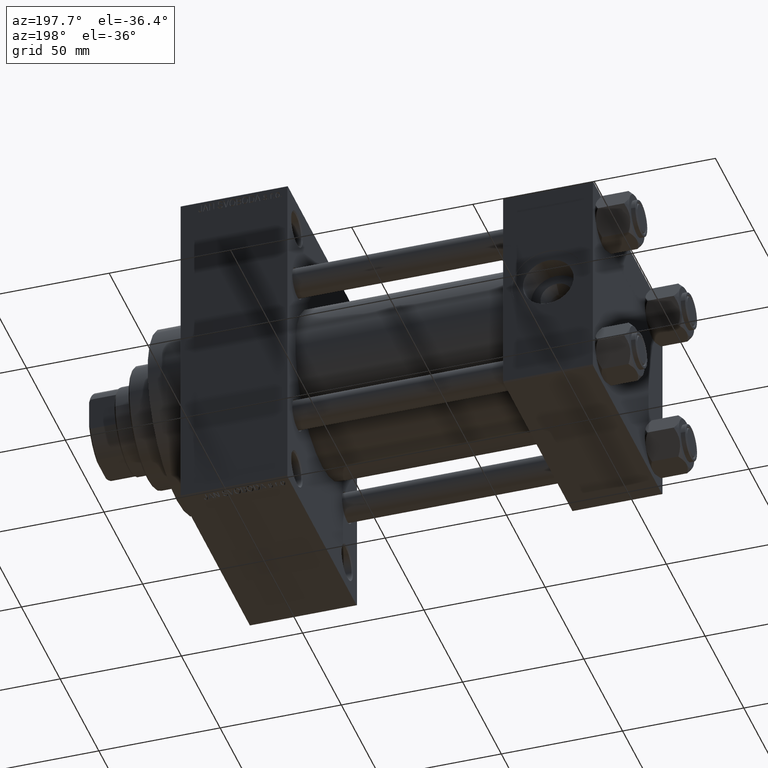
[diagram: clean part render]
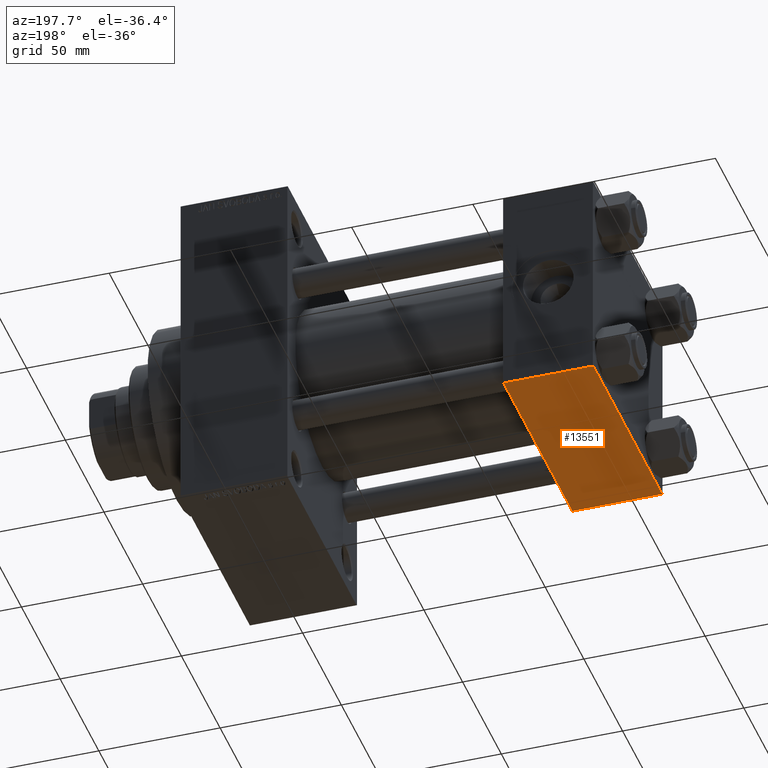
[diagram: same view with one face highlighted and labeled with its STEP entity id]
A machine part, auxiliary view. The second image highlights one B-rep face of the part: STEP entity #13551.
In plain terms, the highlighted planar face has unit normal (0, 0, -1).
Its self-contained STEP definition (entity closure, byte-faithful):
#1308 = VECTOR ( 'NONE', #36597, 1000.000000000000000 ) ;
#1697 = VECTOR ( 'NONE', #25237, 1000.000000000000000 ) ;
#2363 = CARTESIAN_POINT ( 'NONE',  ( 0.000000000000000000, -44.49999999999995737, -45.00000000000000000 ) ) ;
#5522 = ORIENTED_EDGE ( 'NONE', *, *, #10616, .T. ) ;
#5617 = EDGE_LOOP ( 'NONE', ( #17372, #31278, #5522, #17855 ) ) ;
#6010 = DIRECTION ( 'NONE',  ( -1.000000000000000000, 0.000000000000000000, 0.000000000000000000 ) ) ;
#7295 = LINE ( 'NONE', #24212, #11292 ) ;
#10616 = EDGE_CURVE ( 'NONE', #31104, #13644, #14873, .T. ) ;
#11292 = VECTOR ( 'NONE', #6010, 1000.000000000000000 ) ;
#11569 = CARTESIAN_POINT ( 'NONE',  ( 37.00000000000000000, 44.49999999999998579, -44.99999999999998579 ) ) ;
#13551 = ADVANCED_FACE ( 'NONE', ( #16953 ), #46429, .T. ) ;
#13644 = VERTEX_POINT ( 'NONE', #39687 ) ;
#14873 = LINE ( 'NONE', #38586, #44286 ) ;
#16953 = FACE_OUTER_BOUND ( 'NONE', #5617, .T. ) ;
#17372 = ORIENTED_EDGE ( 'NONE', *, *, #39941, .F. ) ;
#17855 = ORIENTED_EDGE ( 'NONE', *, *, #41052, .T. ) ;
#23267 = EDGE_CURVE ( 'NONE', #39651, #31104, #29796, .T. ) ;
#24212 = CARTESIAN_POINT ( 'NONE',  ( 0.000000000000000000, -44.49999999999998579, -45.00000000000000000 ) ) ;
#25237 = DIRECTION ( 'NONE',  ( 1.000000000000000000, 0.000000000000000000, 0.000000000000000000 ) ) ;
#28707 = CARTESIAN_POINT ( 'NONE',  ( 0.000000000000000000, 44.99999999999998579, -44.99999999999998579 ) ) ;
#29796 = LINE ( 'NONE', #11569, #1697 ) ;
#31104 = VERTEX_POINT ( 'NONE', #40844 ) ;
#31278 = ORIENTED_EDGE ( 'NONE', *, *, #23267, .T. ) ;
#31567 = DIRECTION ( 'NONE',  ( 0.000000000000000000, 1.541976423090495880E-16, -1.000000000000000000 ) ) ;
#33171 = VERTEX_POINT ( 'NONE', #2363 ) ;
#33307 = CARTESIAN_POINT ( 'NONE',  ( 0.000000000000000000, 44.49999999999998579, -44.99999999999998579 ) ) ;
#34927 = CARTESIAN_POINT ( 'NONE',  ( 37.00000000000000000, 44.99999999999998579, -44.99999999999998579 ) ) ;
#35960 = AXIS2_PLACEMENT_3D ( 'NONE', #34927, #31567, #46186 ) ;
#36597 = DIRECTION ( 'NONE',  ( 0.000000000000000000, -1.000000000000000000, -1.541976423090495633E-16 ) ) ;
#38357 = DIRECTION ( 'NONE',  ( 0.000000000000000000, -1.000000000000000000, -1.541976423090495633E-16 ) ) ;
#38586 = CARTESIAN_POINT ( 'NONE',  ( 37.00000000000000000, 44.99999999999998579, -44.99999999999998579 ) ) ;
#39651 = VERTEX_POINT ( 'NONE', #33307 ) ;
#39687 = CARTESIAN_POINT ( 'NONE',  ( 37.00000000000000000, -44.49999999999995737, -45.00000000000000000 ) ) ;
#39941 = EDGE_CURVE ( 'NONE', #39651, #33171, #40183, .T. ) ;
#40183 = LINE ( 'NONE', #28707, #1308 ) ;
#40844 = CARTESIAN_POINT ( 'NONE',  ( 37.00000000000000000, 44.49999999999998579, -44.99999999999998579 ) ) ;
#41052 = EDGE_CURVE ( 'NONE', #13644, #33171, #7295, .T. ) ;
#44286 = VECTOR ( 'NONE', #38357, 1000.000000000000000 ) ;
#46186 = DIRECTION ( 'NONE',  ( 0.000000000000000000, 1.000000000000000000, 1.541976423090495880E-16 ) ) ;
#46429 = PLANE ( 'NONE',  #35960 ) ;